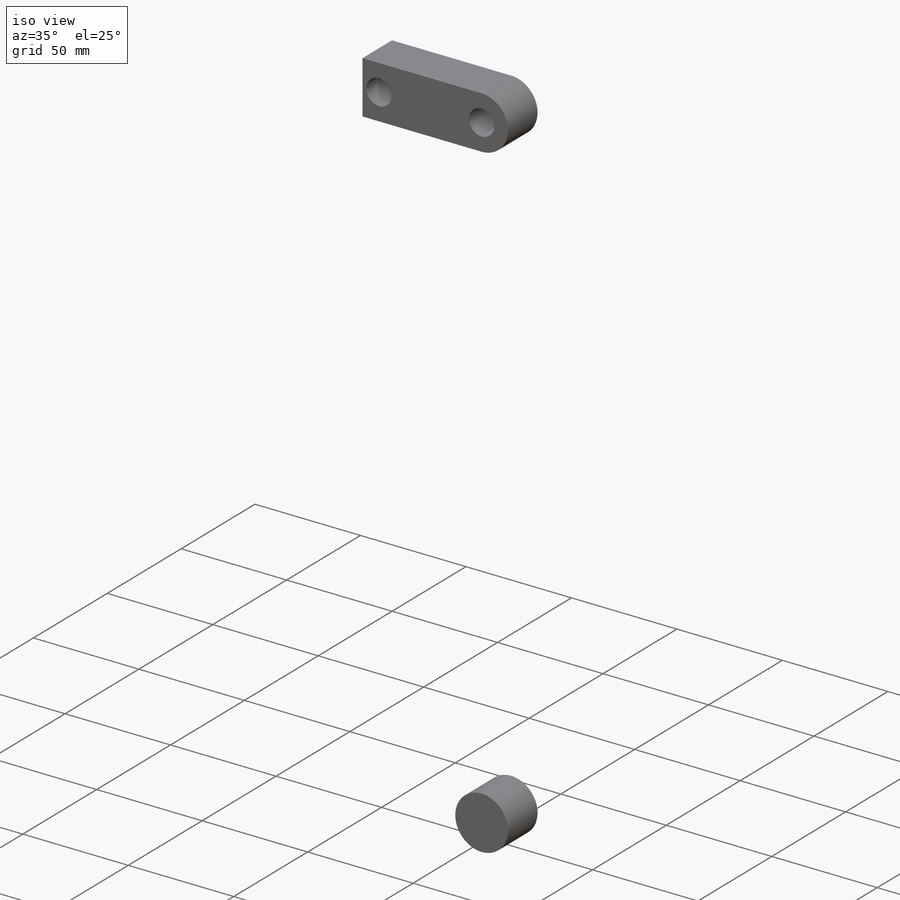
[diagram: iso view]
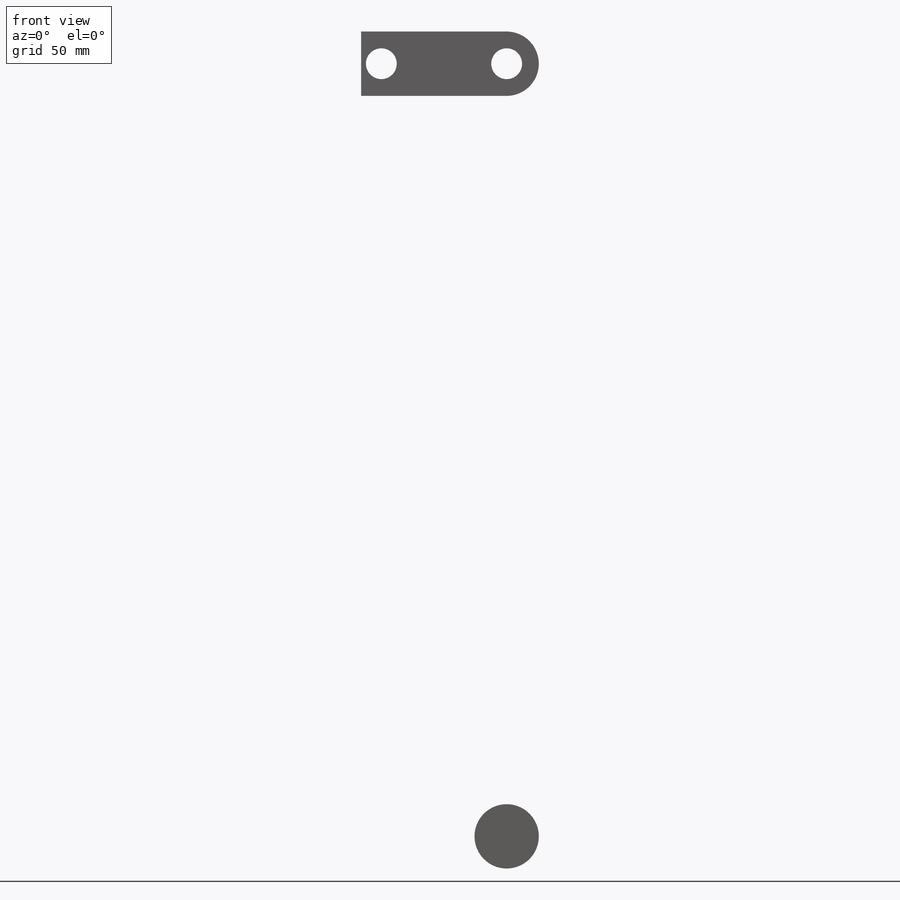
[diagram: front view]
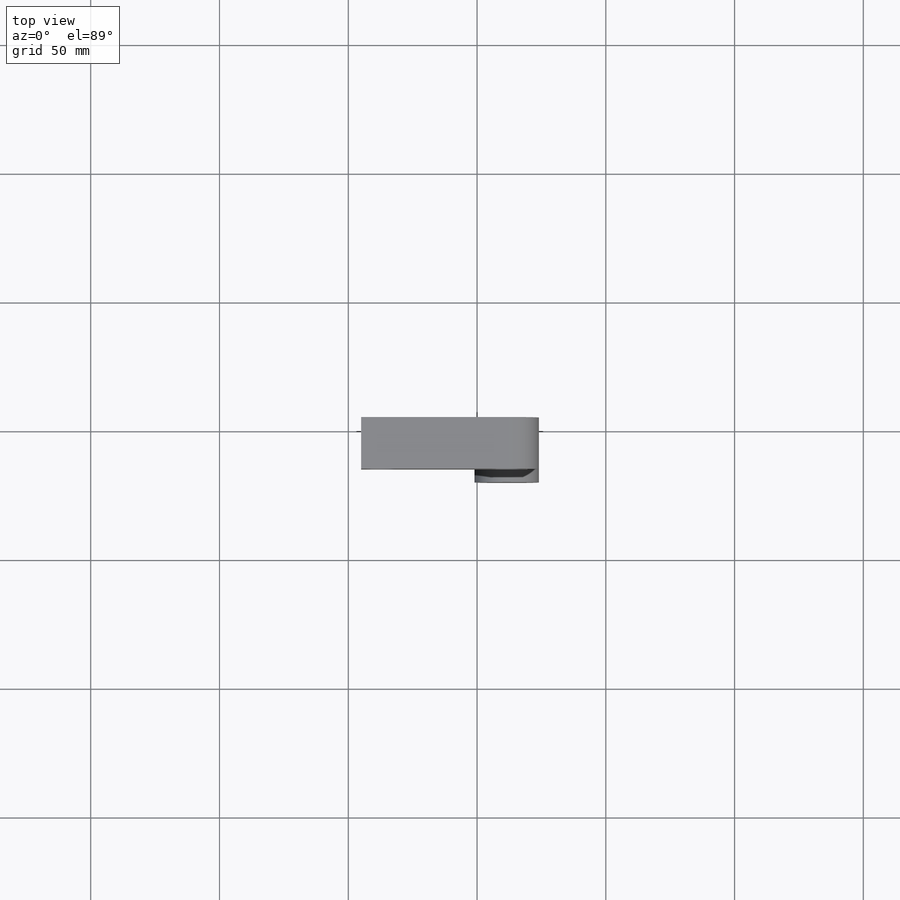
[diagram: top view]
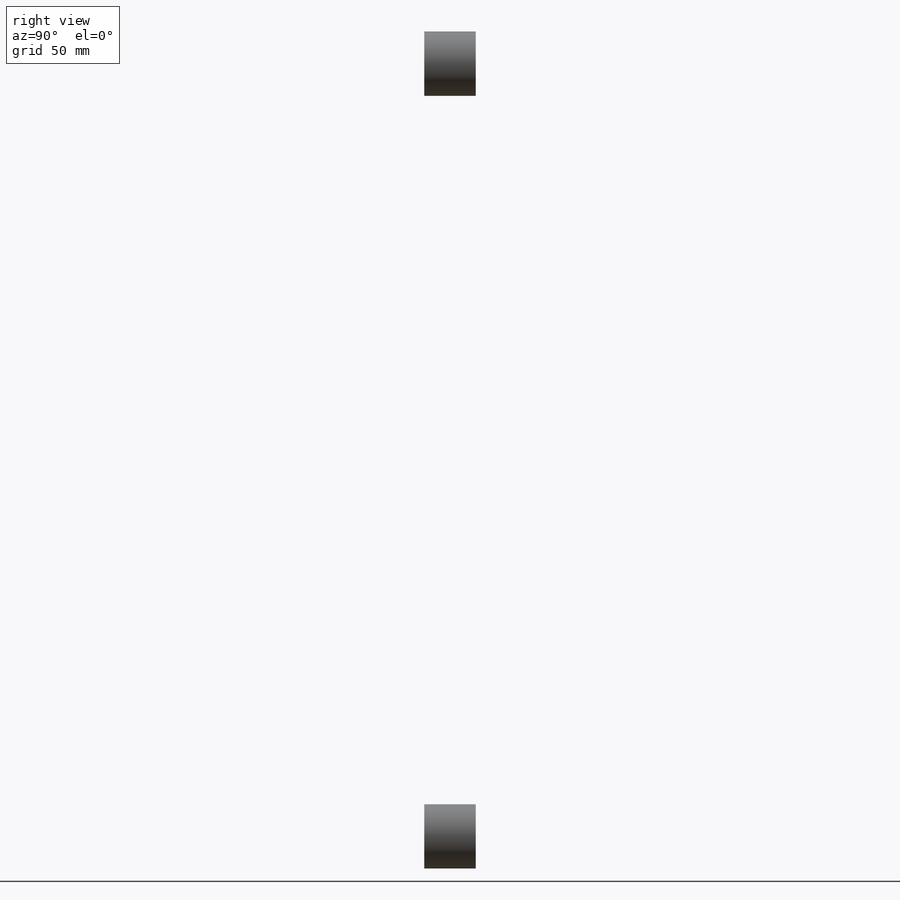
[diagram: right view]
SOLIDWORKS PART (.sldprt)
format: sldprt  version: not decoded by parser v0  size: 114,688 bytes
history: native  units: mm
features: plane x3, sketch x3, extrude x2, material x1, cut_extrude x1 (+13 scaffold rows collapsed)
feature tree (23):
  scaffold x13  (default folders/planes/origin — collapsed)
  material  "Material <não especificado>"
  plane  "Plano frontal"
  plane  "Plano superior"
  plane  "Plano direito"
  sketch  "Esboço1"  dims[D1=25.0mm D4=25.0mm D2=350.0mm D3=25.0mm D5=300.0mm]
  extrude  "Ressalto-extrusão6"  Depth=20mm
  sketch  "Esboço3"
  extrude  "Ressalto-extrusão7"  Depth=45mm
  sketch  "Esboço4"  dims[D1=12.0mm D2=12.0mm]
  cut_extrude  "Corte-extrusão1"  Depth=45mm
decode coverage: 5 of 6 modeling features carry decoded parameters
note: suppression state not decoded; provenance and decode notes live in map.json
